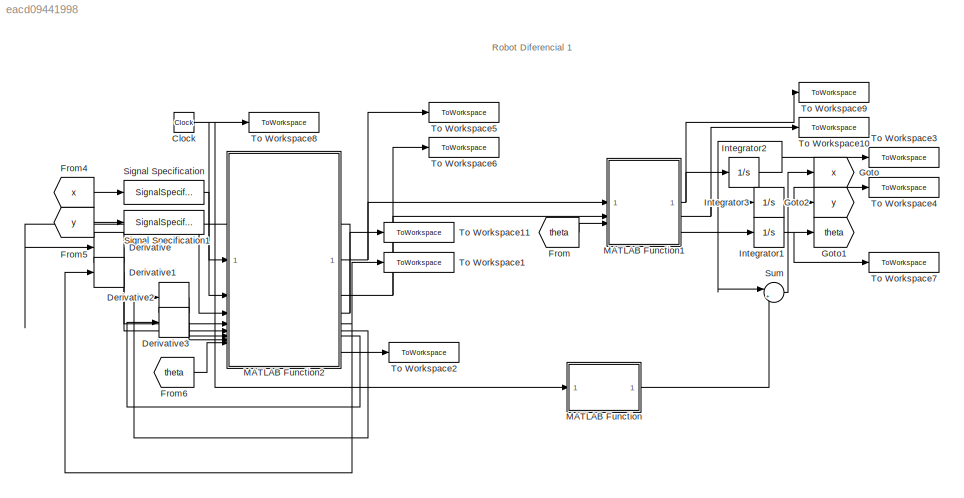
MODEL slx_eacd09441998
KIND model
CONFIG AbsTol = auto
CONFIG EnableMultiTasking = off
CONFIG FixedStep = 0.0001
CONFIG MaxStep = auto
CONFIG MinStep = auto
CONFIG RelTol = 1e-3
CONFIG SampleTimeConstraint = Unconstrained
CONFIG SolverName = ode4
CONFIG StartTime = 0.0
CONFIG StopTime = 30
BLOCK [Clock] Clock
BLOCK [Derivative] Derivative
BLOCK [Derivative] Derivative1
BLOCK [Derivative] Derivative2
BLOCK [Derivative] Derivative3
BLOCK [From] From
  GotoTag = theta
BLOCK [From] From4
  GotoTag = x
BLOCK [From] From5
  GotoTag = y
BLOCK [From] From6
  GotoTag = theta
BLOCK [Goto] Goto
  GotoTag = x
BLOCK [Goto] Goto1
  GotoTag = theta
BLOCK [Goto] Goto2
  GotoTag = y
BLOCK [Integrator] Integrator1
  InitialCondition = 0.1
BLOCK [Integrator] Integrator2
  InitialCondition = 0.1
BLOCK [Integrator] Integrator3
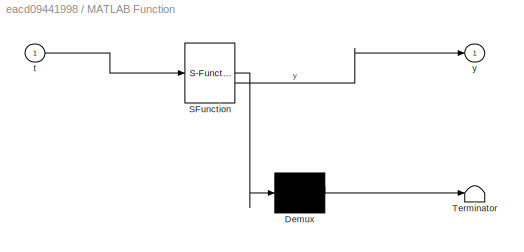
BLOCK [SubSystem] MATLAB Function
  ErrorFcn = Stateflow.Translate.translate
  PermitHierarchicalResolution = ExplicitOnly
  SFBlockType = MATLAB Function
  TreatAsAtomicUnit = on
BLOCK [Demux] MATLAB Function/ Demux 
  Outputs = 1
BLOCK [S-Function] MATLAB Function/ SFunction 
  EnableBusSupport = on
  FunctionName = sf_sfun
  PortCounts = [1 2]
  SFcnIsStateOwnerBlock = off
  SFunctionDeploymentMode = off
  Tag = Stateflow S-Function 3
BLOCK [Terminator] MATLAB Function/ Terminator 
BLOCK [Inport] MATLAB Function/t
BLOCK [Outport] MATLAB Function/y
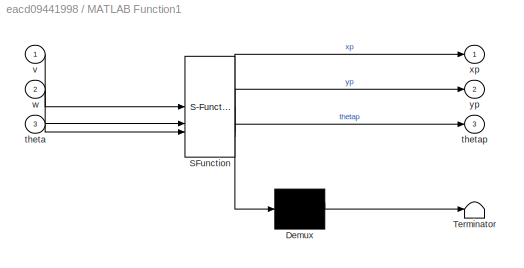
BLOCK [SubSystem] MATLAB Function1
  ErrorFcn = Stateflow.Translate.translate
  PermitHierarchicalResolution = ExplicitOnly
  SFBlockType = MATLAB Function
  TreatAsAtomicUnit = on
BLOCK [Demux] MATLAB Function1/ Demux 
  Outputs = 1
BLOCK [S-Function] MATLAB Function1/ SFunction 
  EnableBusSupport = on
  FunctionName = sf_sfun
  PortCounts = [3 4]
  SFcnIsStateOwnerBlock = off
  SFunctionDeploymentMode = off
  Tag = Stateflow S-Function 1
BLOCK [Terminator] MATLAB Function1/ Terminator 
BLOCK [Inport] MATLAB Function1/theta
  Port = 3
BLOCK [Outport] MATLAB Function1/thetap
  Port = 3
BLOCK [Inport] MATLAB Function1/v
BLOCK [Inport] MATLAB Function1/w
  Port = 2
BLOCK [Outport] MATLAB Function1/xp
BLOCK [Outport] MATLAB Function1/yp
  Port = 2
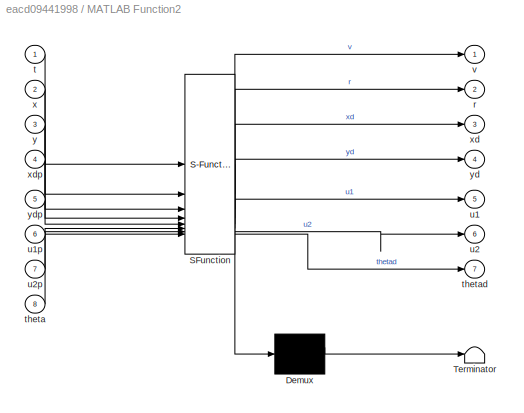
BLOCK [SubSystem] MATLAB Function2
  ErrorFcn = Stateflow.Translate.translate
  PermitHierarchicalResolution = ExplicitOnly
  SFBlockType = MATLAB Function
  TreatAsAtomicUnit = on
BLOCK [Demux] MATLAB Function2/ Demux 
  Outputs = 1
BLOCK [S-Function] MATLAB Function2/ SFunction 
  EnableBusSupport = on
  FunctionName = sf_sfun
  PortCounts = [8 8]
  SFcnIsStateOwnerBlock = off
  SFunctionDeploymentMode = off
  Tag = Stateflow S-Function 2
BLOCK [Terminator] MATLAB Function2/ Terminator 
BLOCK [Outport] MATLAB Function2/r
  Port = 2
BLOCK [Inport] MATLAB Function2/t
BLOCK [Inport] MATLAB Function2/theta
  Port = 8
BLOCK [Outport] MATLAB Function2/thetad
  Port = 7
BLOCK [Outport] MATLAB Function2/u1
  Port = 5
BLOCK [Inport] MATLAB Function2/u1p
  Port = 6
BLOCK [Outport] MATLAB Function2/u2
  Port = 6
BLOCK [Inport] MATLAB Function2/u2p
  Port = 7
BLOCK [Outport] MATLAB Function2/v
BLOCK [Inport] MATLAB Function2/x
  Port = 2
BLOCK [Outport] MATLAB Function2/xd
  Port = 3
BLOCK [Inport] MATLAB Function2/xdp
  Port = 4
BLOCK [Inport] MATLAB Function2/y
  Port = 3
BLOCK [Outport] MATLAB Function2/yd
  Port = 4
BLOCK [Inport] MATLAB Function2/ydp
  Port = 5
BLOCK [SignalSpecification] Signal Specification
  Dimensions = 1
BLOCK [SignalSpecification] Signal Specification1
  Dimensions = 1
BLOCK [Sum] Sum
  Inputs = |++
BLOCK [ToWorkspace] To Workspace1
  FixptAsFi = on
  MaxDataPoints = inf
  SampleTime = -1
  VariableName = yd
BLOCK [ToWorkspace] To Workspace10
  FixptAsFi = on
  MaxDataPoints = inf
  SampleTime = -1
  VariableName = yp
BLOCK [ToWorkspace] To Workspace11
  FixptAsFi = on
  MaxDataPoints = inf
  SampleTime = -1
  VariableName = xd
BLOCK [ToWorkspace] To Workspace2
  FixptAsFi = on
  MaxDataPoints = inf
  SampleTime = -1
  VariableName = thetad
BLOCK [ToWorkspace] To Workspace3
  FixptAsFi = on
  MaxDataPoints = inf
  SampleTime = -1
  VariableName = x
BLOCK [ToWorkspace] To Workspace4
  FixptAsFi = on
  MaxDataPoints = inf
  SampleTime = -1
  VariableName = y
BLOCK [ToWorkspace] To Workspace5
  FixptAsFi = on
  MaxDataPoints = inf
  SampleTime = -1
  VariableName = v
BLOCK [ToWorkspace] To Workspace6
  FixptAsFi = on
  MaxDataPoints = inf
  SampleTime = -1
  VariableName = w
BLOCK [ToWorkspace] To Workspace7
  FixptAsFi = on
  MaxDataPoints = inf
  SampleTime = -1
  VariableName = theta
BLOCK [ToWorkspace] To Workspace8
  FixptAsFi = on
  MaxDataPoints = inf
  SampleTime = -1
  VariableName = tiempo
BLOCK [ToWorkspace] To Workspace9
  FixptAsFi = on
  MaxDataPoints = inf
  SampleTime = -1
  VariableName = xp
ANNOTATION (root): Robot Diferencial 1
NET Clock:1 -> MATLAB Function2:1, MATLAB Function:1, To Workspace8:1
LINE Derivative1:1 -> MATLAB Function2:5
LINE Derivative2:1 -> MATLAB Function2:6
LINE Derivative3:1 -> MATLAB Function2:7
LINE Derivative:1 -> MATLAB Function2:4
LINE From4:1 -> Signal Specification:1
LINE From5:1 -> Signal Specification1:1
LINE From6:1 -> MATLAB Function2:8
LINE From:1 -> MATLAB Function1:3
NET Integrator1:1 -> Goto1:1, To Workspace7:1
NET Integrator2:1 -> Sum:1, To Workspace3:1
NET Integrator3:1 -> Goto2:1, To Workspace4:1
NET MATLAB Function1:1 -> Integrator2:1, To Workspace9:1
NET MATLAB Function1:2 -> Integrator3:1, To Workspace10:1
LINE MATLAB Function1:3 -> Integrator1:1
NET MATLAB Function2:1 -> MATLAB Function1:1, To Workspace5:1
NET MATLAB Function2:2 -> MATLAB Function1:2, To Workspace6:1
NET MATLAB Function2:3 -> Derivative:1, To Workspace11:1
NET MATLAB Function2:4 -> Derivative1:1, To Workspace1:1
LINE MATLAB Function2:5 -> Derivative2:1
LINE MATLAB Function2:6 -> Derivative3:1
LINE MATLAB Function2:7 -> To Workspace2:1
LINE MATLAB Function:1 -> Sum:2
LINE Signal Specification1:1 -> MATLAB Function2:3
LINE Signal Specification:1 -> MATLAB Function2:2
LINE Sum:1 -> Goto:1
note: NET lines group one-source signal fan-out (src -> all destinations, sorted); 1:1 wires keep LINE
CHART MATLAB Function1 states=1 transitions=1
  STATE_LABEL 'eML_blk_kernel()'
  STATE_LABEL 'SCRIPT:\nfunction [xp,yp,thetap] = Robot(v,w,theta)\n\nxp = v*cos(theta); \nyp = v*sin(theta);\nthetap = w;\n'
CHART MATLAB Function2 states=1 transitions=1
  STATE_LABEL 'eML_blk_kernel()'
  STATE_LABEL 'SCRIPT:\nfunction [v,r,xd,yd,u1,u2,thetad]  = Control(t,x,y,xdp,ydp,u1p,u2p,theta)\n%Parámetros de la trayectoria\n%d = 0.8;\n%gamma = 0.4;\na1 = 0.8;\na2 = 0.6;\np = 2*pi/50;\n%Parámetros de la referencia\neps = 0.000001;\n%Ganancias del controlador\nk1=1;\nk2=1;\nk=2;\n%Trayectoria lemniscata deseada\n%xd = d*sqrt(2)*(sin(gamma*t/2)/(1+cos(gamma*t/2)^2));\n%yd = d*sqrt(2)*(sin(gamma*t/2)*cos(gamma*t/2)/(1+cos(g...<+1115ch>'
CHART MATLAB Function states=1 transitions=1
  STATE_LABEL 'eML_blk_kernel()'
  STATE_LABEL 'SCRIPT:\nfunction y = fcn(t)\n\nif t ==25\n    y=0.2;\nelse\n    y=0;\nend'
CHART  states=0 transitions=0
CHART  states=0 transitions=0
CHART  states=0 transitions=0
